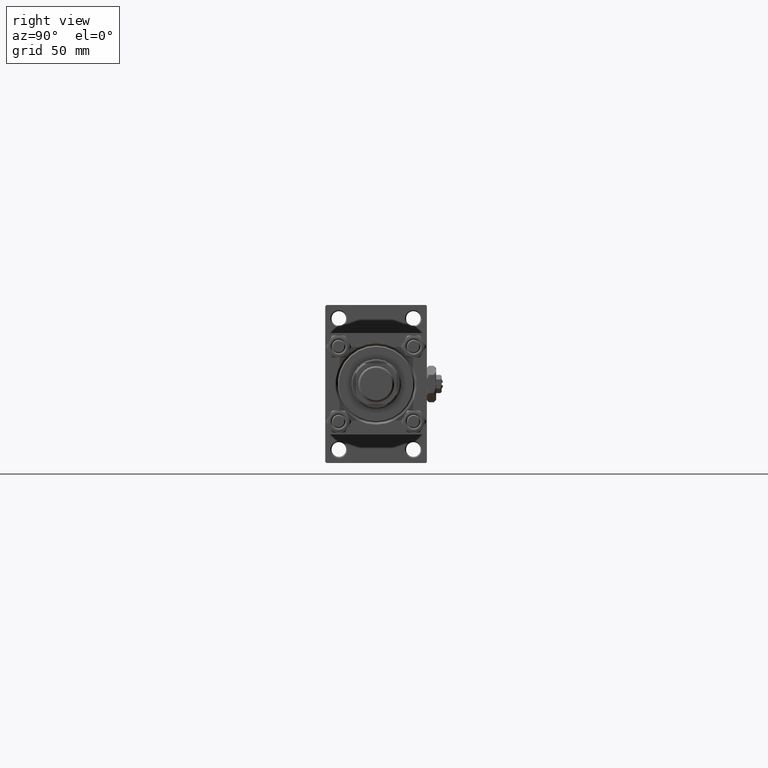
[diagram: clean part render]
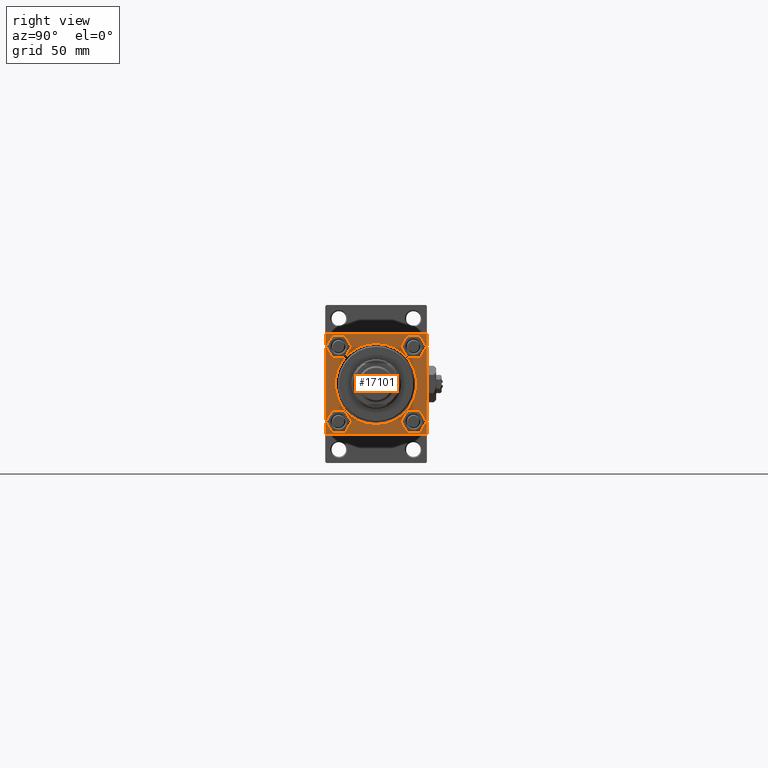
[diagram: same view with one face highlighted and labeled with its STEP entity id]
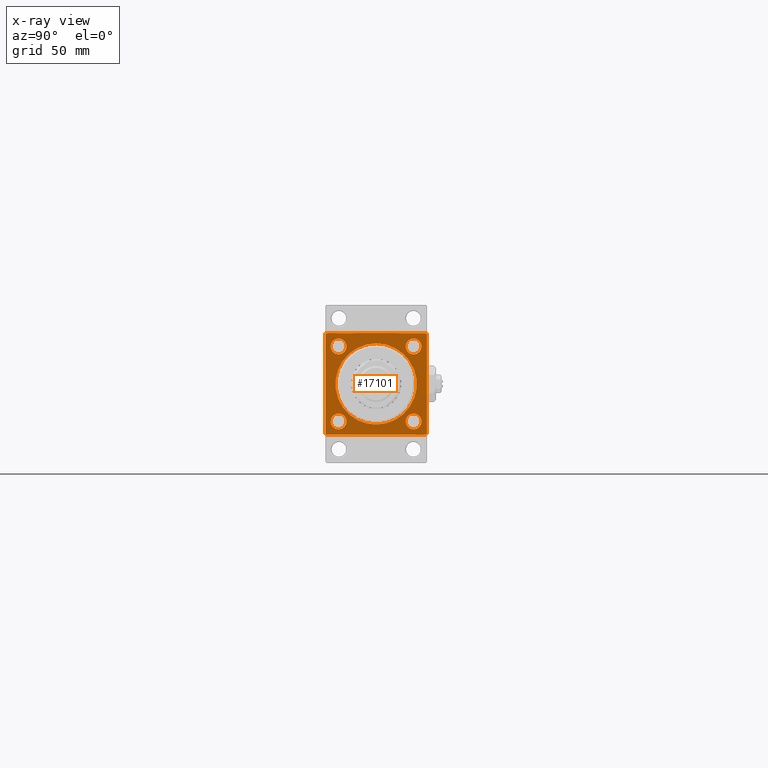
[diagram: x-ray of the same camera — body ghosted, the highlighted face saturated]
A machine part, right view. The second image highlights one B-rep face of the part: STEP entity #17101.
The next image is the same camera in x-ray: the body ghosted, the highlighted face saturated — about 0% of this face is hidden behind the body in this view.
In plain terms, the highlighted planar face has unit normal (-1, 0, 0).
Its self-contained STEP definition (entity closure, byte-faithful):
#290 = EDGE_CURVE ( 'NONE', #7225, #20460, #41391, .T. ) ;
#2014 = EDGE_CURVE ( 'NONE', #29375, #3383, #42445, .T. ) ;
#2377 = PLANE ( 'NONE',  #7600 ) ;
#2662 = VERTEX_POINT ( 'NONE', #37238 ) ;
#2933 = CARTESIAN_POINT ( 'NONE',  ( 263.0000000000000000, 22.00000000000000355, 22.50000000000000355 ) ) ;
#3080 = CARTESIAN_POINT ( 'NONE',  ( 263.0000000000000000, 16.59999999999999787, -20.09999999999998010 ) ) ;
#3383 = VERTEX_POINT ( 'NONE', #46003 ) ;
#3888 = CARTESIAN_POINT ( 'NONE',  ( 263.0000000000000000, -16.59999999999999076, -16.60000000000000853 ) ) ;
#4084 = DIRECTION ( 'NONE',  ( -1.000000000000000000, 0.000000000000000000, -0.000000000000000000 ) ) ;
#4149 = CARTESIAN_POINT ( 'NONE',  ( 263.0000000000000000, 2.204364238465244894E-15, 18.00000000000007105 ) ) ;
#4154 = DIRECTION ( 'NONE',  ( -1.000000000000000000, 0.000000000000000000, -0.000000000000000000 ) ) ;
#4620 = ORIENTED_EDGE ( 'NONE', *, *, #46845, .T. ) ;
#4676 = DIRECTION ( 'NONE',  ( 0.000000000000000000, -1.000000000000000000, -2.312964634635742957E-16 ) ) ;
#4871 = DIRECTION ( 'NONE',  ( 0.000000000000000000, 0.000000000000000000, 1.000000000000000000 ) ) ;
#5074 = AXIS2_PLACEMENT_3D ( 'NONE', #30542, #10373, #38745 ) ;
#5372 = CIRCLE ( 'NONE', #12972, 3.499999999999975131 ) ;
#5843 = DIRECTION ( 'NONE',  ( -0.000000000000000000, -0.7071067811865279218, -0.7071067811865671127 ) ) ;
#6693 = CARTESIAN_POINT ( 'NONE',  ( 263.0000000000000000, 22.50000000000000355, 22.00000000000000355 ) ) ;
#6846 = AXIS2_PLACEMENT_3D ( 'NONE', #41634, #18548, #34729 ) ;
#7029 = CARTESIAN_POINT ( 'NONE',  ( 263.0000000000000000, 0.000000000000000000, 0.000000000000000000 ) ) ;
#7225 = VERTEX_POINT ( 'NONE', #21006 ) ;
#7267 = CARTESIAN_POINT ( 'NONE',  ( 263.0000000000000000, -22.49999999999999645, 21.99999999999999289 ) ) ;
#7600 = AXIS2_PLACEMENT_3D ( 'NONE', #38695, #14300, #51177 ) ;
#8717 = CARTESIAN_POINT ( 'NONE',  ( 263.0000000000000000, 16.59999999999999787, -13.10000000000002807 ) ) ;
#8768 = FACE_BOUND ( 'NONE', #47957, .T. ) ;
#9095 = ORIENTED_EDGE ( 'NONE', *, *, #39242, .F. ) ;
#9167 = LINE ( 'NONE', #24289, #20623 ) ;
#9319 = ORIENTED_EDGE ( 'NONE', *, *, #49752, .T. ) ;
#10162 = AXIS2_PLACEMENT_3D ( 'NONE', #50551, #22684, #29881 ) ;
#10262 = EDGE_LOOP ( 'NONE', ( #39322, #24178 ) ) ;
#10373 = DIRECTION ( 'NONE',  ( -1.000000000000000000, 0.000000000000000000, -0.000000000000000000 ) ) ;
#10739 = EDGE_CURVE ( 'NONE', #41917, #37006, #25681, .T. ) ;
#10762 = CIRCLE ( 'NONE', #37872, 18.00000000000007105 ) ;
#11284 = AXIS2_PLACEMENT_3D ( 'NONE', #32319, #51974, #27569 ) ;
#11977 = ORIENTED_EDGE ( 'NONE', *, *, #28840, .T. ) ;
#12491 = LINE ( 'NONE', #37937, #30999 ) ;
#12551 = VERTEX_POINT ( 'NONE', #7267 ) ;
#12679 = ORIENTED_EDGE ( 'NONE', *, *, #49666, .T. ) ;
#12972 = AXIS2_PLACEMENT_3D ( 'NONE', #49554, #17710, #29401 ) ;
#13179 = ORIENTED_EDGE ( 'NONE', *, *, #10739, .T. ) ;
#14043 = FACE_BOUND ( 'NONE', #10262, .T. ) ;
#14300 = DIRECTION ( 'NONE',  ( -1.000000000000000000, 0.000000000000000000, -0.000000000000000000 ) ) ;
#14532 = VERTEX_POINT ( 'NONE', #52116 ) ;
#14678 = EDGE_LOOP ( 'NONE', ( #51663, #37478, #9095, #4620, #34394, #52312, #11977, #38785 ) ) ;
#15096 = EDGE_CURVE ( 'NONE', #14532, #45619, #35300, .T. ) ;
#15203 = CIRCLE ( 'NONE', #5074, 3.499999999999975131 ) ;
#15325 = VERTEX_POINT ( 'NONE', #3080 ) ;
#15350 = CARTESIAN_POINT ( 'NONE',  ( 263.0000000000000000, -21.99999999999998224, -22.50000000000000000 ) ) ;
#16474 = DIRECTION ( 'NONE',  ( -0.000000000000000000, 0.7071067811865279218, 0.7071067811865672237 ) ) ;
#16529 = CARTESIAN_POINT ( 'NONE',  ( 263.0000000000000000, -16.59999999999999076, 16.60000000000000853 ) ) ;
#16579 = CARTESIAN_POINT ( 'NONE',  ( 263.0000000000000000, 16.59999999999999787, -16.60000000000000497 ) ) ;
#17101 = ADVANCED_FACE ( 'NONE', ( #50391, #14043, #45100, #8768, #24942, #41120 ), #2377, .F. ) ;
#17322 = DIRECTION ( 'NONE',  ( 0.000000000000000000, 0.000000000000000000, 1.000000000000000000 ) ) ;
#17710 = DIRECTION ( 'NONE',  ( -1.000000000000000000, 0.000000000000000000, -0.000000000000000000 ) ) ;
#18199 = VECTOR ( 'NONE', #5843, 1000.000000000000000 ) ;
#18548 = DIRECTION ( 'NONE',  ( -1.000000000000000000, 0.000000000000000000, -0.000000000000000000 ) ) ;
#18603 = VECTOR ( 'NONE', #30263, 1000.000000000000114 ) ;
#18704 = DIRECTION ( 'NONE',  ( -1.000000000000000000, 0.000000000000000000, -0.000000000000000000 ) ) ;
#18884 = VERTEX_POINT ( 'NONE', #49259 ) ;
#18968 = DIRECTION ( 'NONE',  ( 0.000000000000000000, 0.000000000000000000, 1.000000000000000000 ) ) ;
#19106 = AXIS2_PLACEMENT_3D ( 'NONE', #16579, #4154, #17322 ) ;
#19607 = EDGE_CURVE ( 'NONE', #45767, #15325, #15203, .T. ) ;
#20460 = VERTEX_POINT ( 'NONE', #24404 ) ;
#20623 = VECTOR ( 'NONE', #4676, 1000.000000000000000 ) ;
#20835 = VECTOR ( 'NONE', #51407, 1000.000000000000000 ) ;
#21006 = CARTESIAN_POINT ( 'NONE',  ( 263.0000000000000000, -16.59999999999999076, -20.09999999999998366 ) ) ;
#21108 = EDGE_CURVE ( 'NONE', #29375, #2662, #36476, .T. ) ;
#21423 = EDGE_CURVE ( 'NONE', #36756, #18884, #43259, .T. ) ;
#21488 = ORIENTED_EDGE ( 'NONE', *, *, #290, .T. ) ;
#22668 = EDGE_CURVE ( 'NONE', #20460, #7225, #44970, .T. ) ;
#22684 = DIRECTION ( 'NONE',  ( -1.000000000000000000, 0.000000000000000000, -0.000000000000000000 ) ) ;
#22980 = CARTESIAN_POINT ( 'NONE',  ( 263.0000000000000000, -16.59999999999999076, 20.09999999999998366 ) ) ;
#24178 = ORIENTED_EDGE ( 'NONE', *, *, #19607, .T. ) ;
#24289 = CARTESIAN_POINT ( 'NONE',  ( 263.0000000000000000, 22.50000000000000355, 22.50000000000000355 ) ) ;
#24404 = CARTESIAN_POINT ( 'NONE',  ( 263.0000000000000000, -16.59999999999999076, -13.10000000000003162 ) ) ;
#24942 = FACE_BOUND ( 'NONE', #47531, .T. ) ;
#25681 = CIRCLE ( 'NONE', #11284, 3.499999999999975131 ) ;
#25791 = CARTESIAN_POINT ( 'NONE',  ( 263.0000000000000000, -22.00000000000001066, 22.49999999999999289 ) ) ;
#25812 = VERTEX_POINT ( 'NONE', #25791 ) ;
#26748 = ORIENTED_EDGE ( 'NONE', *, *, #39951, .T. ) ;
#27569 = DIRECTION ( 'NONE',  ( 0.000000000000000000, 0.000000000000000000, 1.000000000000000000 ) ) ;
#28591 = VERTEX_POINT ( 'NONE', #31526 ) ;
#28797 = CARTESIAN_POINT ( 'NONE',  ( 263.0000000000000000, 22.50000000000000355, 22.50000000000000355 ) ) ;
#28840 = EDGE_CURVE ( 'NONE', #3383, #25812, #9167, .T. ) ;
#29337 = AXIS2_PLACEMENT_3D ( 'NONE', #7029, #18704, #18968 ) ;
#29375 = VERTEX_POINT ( 'NONE', #6693 ) ;
#29401 = DIRECTION ( 'NONE',  ( 0.000000000000000000, 0.000000000000000000, 1.000000000000000000 ) ) ;
#29537 = CARTESIAN_POINT ( 'NONE',  ( 263.0000000000000000, 16.59999999999999787, 20.09999999999998010 ) ) ;
#29687 = CARTESIAN_POINT ( 'NONE',  ( 263.0000000000000000, 16.59999999999999787, 13.10000000000002807 ) ) ;
#29738 = VERTEX_POINT ( 'NONE', #41263 ) ;
#29765 = AXIS2_PLACEMENT_3D ( 'NONE', #3888, #39684, #32520 ) ;
#29881 = DIRECTION ( 'NONE',  ( 0.000000000000000000, 0.000000000000000000, 1.000000000000000000 ) ) ;
#30263 = DIRECTION ( 'NONE',  ( 0.000000000000000000, -0.7071067811865474617, 0.7071067811865474617 ) ) ;
#30542 = CARTESIAN_POINT ( 'NONE',  ( 263.0000000000000000, 16.59999999999999787, -16.60000000000000497 ) ) ;
#30999 = VECTOR ( 'NONE', #16474, 1000.000000000000000 ) ;
#31526 = CARTESIAN_POINT ( 'NONE',  ( 263.0000000000000000, 0.000000000000000000, -18.00000000000007105 ) ) ;
#31644 = DIRECTION ( 'NONE',  ( 0.000000000000000000, -1.000000000000000000, -7.709882115452476934E-17 ) ) ;
#31932 = CIRCLE ( 'NONE', #33640, 3.499999999999975131 ) ;
#32010 = EDGE_CURVE ( 'NONE', #25812, #12551, #49879, .T. ) ;
#32319 = CARTESIAN_POINT ( 'NONE',  ( 263.0000000000000000, 16.59999999999999787, 16.60000000000000497 ) ) ;
#32453 = ORIENTED_EDGE ( 'NONE', *, *, #21423, .T. ) ;
#32520 = DIRECTION ( 'NONE',  ( 0.000000000000000000, 0.000000000000000000, 1.000000000000000000 ) ) ;
#33640 = AXIS2_PLACEMENT_3D ( 'NONE', #16529, #4084, #48890 ) ;
#34394 = ORIENTED_EDGE ( 'NONE', *, *, #21108, .F. ) ;
#34530 = VECTOR ( 'NONE', #31644, 1000.000000000000000 ) ;
#34729 = DIRECTION ( 'NONE',  ( 0.000000000000000000, 0.000000000000000000, 1.000000000000000000 ) ) ;
#34737 = CARTESIAN_POINT ( 'NONE',  ( 263.0000000000000000, -22.49999999999999645, 21.99999999999999289 ) ) ;
#35300 = LINE ( 'NONE', #42730, #46492 ) ;
#36476 = LINE ( 'NONE', #28797, #51681 ) ;
#36756 = VERTEX_POINT ( 'NONE', #22980 ) ;
#36907 = EDGE_CURVE ( 'NONE', #15325, #45767, #43654, .T. ) ;
#37006 = VERTEX_POINT ( 'NONE', #29537 ) ;
#37214 = CARTESIAN_POINT ( 'NONE',  ( 263.0000000000000000, 0.000000000000000000, 0.000000000000000000 ) ) ;
#37238 = CARTESIAN_POINT ( 'NONE',  ( 263.0000000000000000, 22.50000000000000355, -21.99999999999995381 ) ) ;
#37478 = ORIENTED_EDGE ( 'NONE', *, *, #15096, .T. ) ;
#37872 = AXIS2_PLACEMENT_3D ( 'NONE', #37214, #48629, #4871 ) ;
#37937 = CARTESIAN_POINT ( 'NONE',  ( 263.0000000000000000, 22.50000000000000355, -21.99999999999996803 ) ) ;
#38631 = EDGE_CURVE ( 'NONE', #12551, #14532, #43692, .T. ) ;
#38695 = CARTESIAN_POINT ( 'NONE',  ( 263.0000000000000000, 0.000000000000000000, 0.000000000000000000 ) ) ;
#38745 = DIRECTION ( 'NONE',  ( 0.000000000000000000, 0.000000000000000000, 1.000000000000000000 ) ) ;
#38785 = ORIENTED_EDGE ( 'NONE', *, *, #32010, .T. ) ;
#39242 = EDGE_CURVE ( 'NONE', #29738, #45619, #43828, .T. ) ;
#39322 = ORIENTED_EDGE ( 'NONE', *, *, #36907, .T. ) ;
#39684 = DIRECTION ( 'NONE',  ( -1.000000000000000000, 0.000000000000000000, -0.000000000000000000 ) ) ;
#39951 = EDGE_CURVE ( 'NONE', #37006, #41917, #5372, .T. ) ;
#40885 = ORIENTED_EDGE ( 'NONE', *, *, #47208, .T. ) ;
#41120 = FACE_OUTER_BOUND ( 'NONE', #14678, .T. ) ;
#41263 = CARTESIAN_POINT ( 'NONE',  ( 263.0000000000000000, 22.00000000000000355, -22.49999999999999645 ) ) ;
#41391 = CIRCLE ( 'NONE', #10162, 3.499999999999975131 ) ;
#41634 = CARTESIAN_POINT ( 'NONE',  ( 263.0000000000000000, -16.59999999999999076, 16.60000000000000853 ) ) ;
#41917 = VERTEX_POINT ( 'NONE', #29687 ) ;
#42112 = ORIENTED_EDGE ( 'NONE', *, *, #22668, .T. ) ;
#42445 = LINE ( 'NONE', #2933, #18603 ) ;
#42460 = DIRECTION ( 'NONE',  ( 0.000000000000000000, 0.7071067811865425767, -0.7071067811865525687 ) ) ;
#42730 = CARTESIAN_POINT ( 'NONE',  ( 263.0000000000000000, -21.99999999999999645, -22.50000000000000000 ) ) ;
#43259 = CIRCLE ( 'NONE', #6846, 3.499999999999975131 ) ;
#43654 = CIRCLE ( 'NONE', #19106, 3.499999999999975131 ) ;
#43692 = LINE ( 'NONE', #47939, #20835 ) ;
#43828 = LINE ( 'NONE', #51810, #34530 ) ;
#44970 = CIRCLE ( 'NONE', #29765, 3.499999999999975131 ) ;
#45100 = FACE_BOUND ( 'NONE', #45908, .T. ) ;
#45233 = DIRECTION ( 'NONE',  ( 0.000000000000000000, 0.000000000000000000, -1.000000000000000000 ) ) ;
#45619 = VERTEX_POINT ( 'NONE', #15350 ) ;
#45767 = VERTEX_POINT ( 'NONE', #8717 ) ;
#45908 = EDGE_LOOP ( 'NONE', ( #13179, #26748 ) ) ;
#46003 = CARTESIAN_POINT ( 'NONE',  ( 263.0000000000000000, 22.00000000000000355, 22.50000000000000355 ) ) ;
#46056 = VERTEX_POINT ( 'NONE', #4149 ) ;
#46492 = VECTOR ( 'NONE', #42460, 999.9999999999998863 ) ;
#46845 = EDGE_CURVE ( 'NONE', #29738, #2662, #12491, .T. ) ;
#47208 = EDGE_CURVE ( 'NONE', #28591, #46056, #48817, .T. ) ;
#47531 = EDGE_LOOP ( 'NONE', ( #40885, #12679 ) ) ;
#47939 = CARTESIAN_POINT ( 'NONE',  ( 263.0000000000000000, -22.49999999999999645, 22.49999999999999289 ) ) ;
#47957 = EDGE_LOOP ( 'NONE', ( #9319, #32453 ) ) ;
#48629 = DIRECTION ( 'NONE',  ( -1.000000000000000000, 0.000000000000000000, -0.000000000000000000 ) ) ;
#48817 = CIRCLE ( 'NONE', #29337, 18.00000000000007105 ) ;
#48890 = DIRECTION ( 'NONE',  ( 0.000000000000000000, 0.000000000000000000, 1.000000000000000000 ) ) ;
#49259 = CARTESIAN_POINT ( 'NONE',  ( 263.0000000000000000, -16.59999999999999076, 13.10000000000003162 ) ) ;
#49554 = CARTESIAN_POINT ( 'NONE',  ( 263.0000000000000000, 16.59999999999999787, 16.60000000000000497 ) ) ;
#49666 = EDGE_CURVE ( 'NONE', #46056, #28591, #10762, .T. ) ;
#49752 = EDGE_CURVE ( 'NONE', #18884, #36756, #31932, .T. ) ;
#49879 = LINE ( 'NONE', #34737, #18199 ) ;
#49893 = EDGE_LOOP ( 'NONE', ( #21488, #42112 ) ) ;
#50391 = FACE_BOUND ( 'NONE', #49893, .T. ) ;
#50551 = CARTESIAN_POINT ( 'NONE',  ( 263.0000000000000000, -16.59999999999999076, -16.60000000000000853 ) ) ;
#51177 = DIRECTION ( 'NONE',  ( -0.000000000000000000, 0.000000000000000000, 1.000000000000000000 ) ) ;
#51407 = DIRECTION ( 'NONE',  ( 0.000000000000000000, 0.000000000000000000, -1.000000000000000000 ) ) ;
#51663 = ORIENTED_EDGE ( 'NONE', *, *, #38631, .T. ) ;
#51681 = VECTOR ( 'NONE', #45233, 1000.000000000000000 ) ;
#51810 = CARTESIAN_POINT ( 'NONE',  ( 263.0000000000000000, 22.50000000000000355, -22.49999999999999645 ) ) ;
#51974 = DIRECTION ( 'NONE',  ( -1.000000000000000000, 0.000000000000000000, -0.000000000000000000 ) ) ;
#52116 = CARTESIAN_POINT ( 'NONE',  ( 263.0000000000000000, -22.49999999999999645, -21.99999999999997868 ) ) ;
#52312 = ORIENTED_EDGE ( 'NONE', *, *, #2014, .T. ) ;